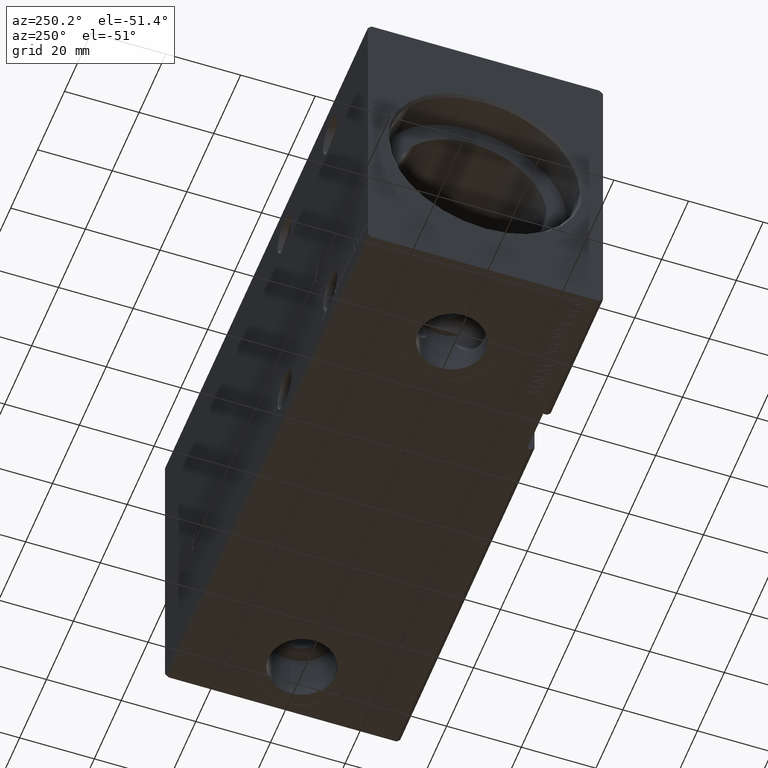
[diagram: clean part render]
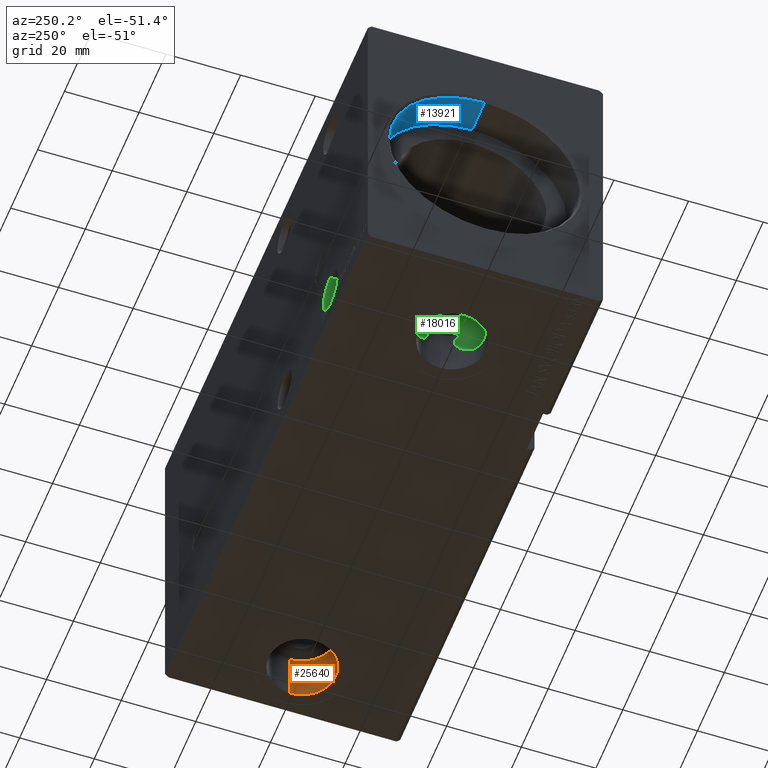
[diagram: same view with three faces highlighted in distinct colors, each labeled with its STEP entity id]
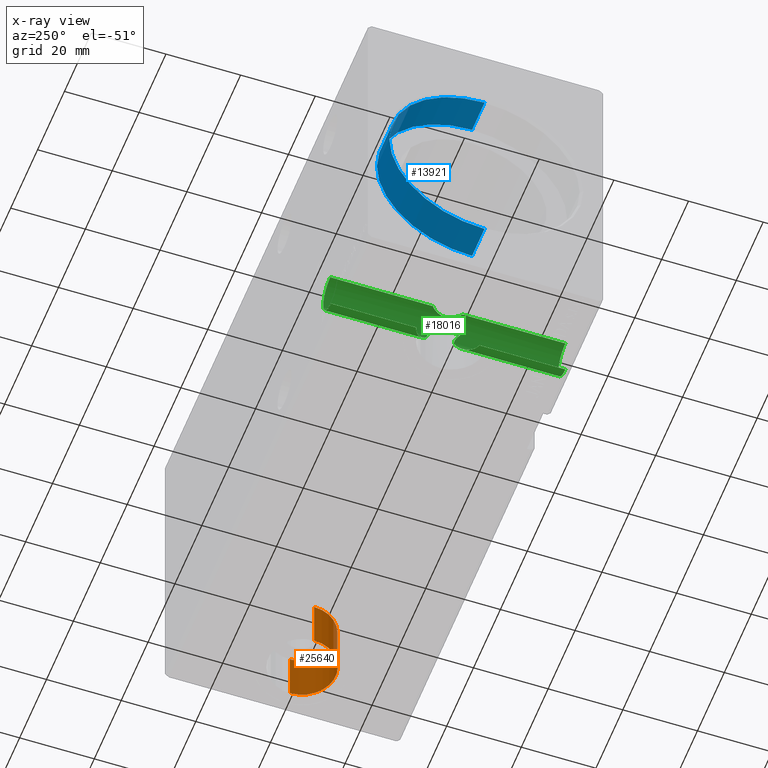
[diagram: x-ray of the same camera — body ghosted, the three highlighted faces saturated]
A machine part, auxiliary view with three faces highlighted in distinct colors.
The next image is the same camera in x-ray (body ghosted, the three faces saturated) — at least one of them is partly hidden behind the body in this view.
Their STEP definitions:

[orange] entity #25640 — the highlighted cylindrical surface (edge-blend (fillet) strip) has radius 9 mm, axis along (-0, -0, -1).
#418 = EDGE_CURVE ( 'NONE', #35977, #12350, #28423, .T. ) ;
#490 = CIRCLE ( 'NONE', #12382, 9.000000000000007105 ) ;
#578 = DIRECTION ( 'NONE',  ( 0.000000000000000000, 0.000000000000000000, -1.000000000000000000 ) ) ;
#773 = AXIS2_PLACEMENT_3D ( 'NONE', #39363, #7695, #26533 ) ;
#989 = DIRECTION ( 'NONE',  ( 0.000000000000000000, 0.000000000000000000, -1.000000000000000000 ) ) ;
#1193 = CARTESIAN_POINT ( 'NONE',  ( 136.4999999999999432, -1.685028184749867373E-14, -42.40000000000000568 ) ) ;
#2338 = VERTEX_POINT ( 'NONE', #5359 ) ;
#5359 = CARTESIAN_POINT ( 'NONE',  ( 145.4999999999999716, -1.574809972826605425E-14, -42.40000000000000568 ) ) ;
#6477 = CARTESIAN_POINT ( 'NONE',  ( 127.4999999999999432, -1.685028184749867373E-14, -28.80000000000000782 ) ) ;
#7695 = DIRECTION ( 'NONE',  ( -0.000000000000000000, -0.000000000000000000, -1.000000000000000000 ) ) ;
#8541 = EDGE_CURVE ( 'NONE', #33361, #2338, #39994, .T. ) ;
#9210 = EDGE_CURVE ( 'NONE', #2338, #12350, #36167, .T. ) ;
#10099 = DIRECTION ( 'NONE',  ( -1.000000000000000000, 0.000000000000000000, 0.000000000000000000 ) ) ;
#11309 = EDGE_CURVE ( 'NONE', #33361, #35977, #490, .T. ) ;
#12350 = VERTEX_POINT ( 'NONE', #16968 ) ;
#12382 = AXIS2_PLACEMENT_3D ( 'NONE', #15893, #578, #10099 ) ;
#13915 = FACE_OUTER_BOUND ( 'NONE', #15657, .T. ) ;
#14540 = DIRECTION ( 'NONE',  ( -0.000000000000000000, -0.000000000000000000, -1.000000000000000000 ) ) ;
#14794 = DIRECTION ( 'NONE',  ( -1.000000000000000000, 0.000000000000000000, 0.000000000000000000 ) ) ;
#14832 = VECTOR ( 'NONE', #16203, 1000.000000000000000 ) ;
#15657 = EDGE_LOOP ( 'NONE', ( #30499, #37000, #28305, #22236 ) ) ;
#15893 = CARTESIAN_POINT ( 'NONE',  ( 136.4999999999999432, -1.685028184749867373E-14, -28.80000000000000782 ) ) ;
#16203 = DIRECTION ( 'NONE',  ( -0.000000000000000000, -0.000000000000000000, -1.000000000000000000 ) ) ;
#16968 = CARTESIAN_POINT ( 'NONE',  ( 127.4999999999999432, -1.685028184749867373E-14, -42.40000000000000568 ) ) ;
#19835 = CARTESIAN_POINT ( 'NONE',  ( 127.4999999999999432, -1.685028184749867373E-14, -28.80000000000000782 ) ) ;
#20330 = CARTESIAN_POINT ( 'NONE',  ( 145.4999999999999716, -1.574809972826605425E-14, -28.80000000000000782 ) ) ;
#22234 = VECTOR ( 'NONE', #14540, 1000.000000000000000 ) ;
#22236 = ORIENTED_EDGE ( 'NONE', *, *, #418, .F. ) ;
#24633 = CARTESIAN_POINT ( 'NONE',  ( 145.4999999999999716, -1.574809972826605425E-14, -28.80000000000000782 ) ) ;
#25640 = ADVANCED_FACE ( 'NONE', ( #13915 ), #29027, .F. ) ;
#26533 = DIRECTION ( 'NONE',  ( -1.000000000000000000, 0.000000000000000000, 0.000000000000000000 ) ) ;
#28305 = ORIENTED_EDGE ( 'NONE', *, *, #9210, .T. ) ;
#28423 = LINE ( 'NONE', #6477, #14832 ) ;
#29027 = CYLINDRICAL_SURFACE ( 'NONE', #773, 9.000000000000007105 ) ;
#30499 = ORIENTED_EDGE ( 'NONE', *, *, #11309, .F. ) ;
#33361 = VERTEX_POINT ( 'NONE', #24633 ) ;
#35977 = VERTEX_POINT ( 'NONE', #19835 ) ;
#36167 = CIRCLE ( 'NONE', #40784, 9.000000000000007105 ) ;
#37000 = ORIENTED_EDGE ( 'NONE', *, *, #8541, .T. ) ;
#39363 = CARTESIAN_POINT ( 'NONE',  ( 136.4999999999999432, -1.685028184749867373E-14, -28.80000000000000782 ) ) ;
#39994 = LINE ( 'NONE', #20330, #22234 ) ;
#40784 = AXIS2_PLACEMENT_3D ( 'NONE', #1193, #989, #14794 ) ;

[blue] entity #13921 — the highlighted cylindrical surface (partial cylindrical patch) has radius 25.5 mm, axis along (-1, -0, -0).
#338 = EDGE_LOOP ( 'NONE', ( #19594, #37217, #11911, #11389 ) ) ;
#1632 = EDGE_CURVE ( 'NONE', #11789, #10135, #36674, .T. ) ;
#3279 = DIRECTION ( 'NONE',  ( -1.000000000000000000, -0.000000000000000000, -0.000000000000000000 ) ) ;
#6040 = DIRECTION ( 'NONE',  ( 0.000000000000000000, 0.000000000000000000, 1.000000000000000000 ) ) ;
#6054 = EDGE_CURVE ( 'NONE', #37896, #11789, #27591, .T. ) ;
#6943 = AXIS2_PLACEMENT_3D ( 'NONE', #21959, #19471, #13062 ) ;
#7833 = EDGE_CURVE ( 'NONE', #40856, #10135, #18991, .T. ) ;
#7940 = DIRECTION ( 'NONE',  ( -1.000000000000000000, -0.000000000000000000, -0.000000000000000000 ) ) ;
#9084 = DIRECTION ( 'NONE',  ( 0.000000000000000000, 0.000000000000000000, 1.000000000000000000 ) ) ;
#9290 = CARTESIAN_POINT ( 'NONE',  ( 10.00000000000000000, 0.000000000000000000, 0.000000000000000000 ) ) ;
#9491 = CYLINDRICAL_SURFACE ( 'NONE', #15083, 25.50000000000000000 ) ;
#10135 = VERTEX_POINT ( 'NONE', #12219 ) ;
#11389 = ORIENTED_EDGE ( 'NONE', *, *, #1632, .T. ) ;
#11789 = VERTEX_POINT ( 'NONE', #27219 ) ;
#11911 = ORIENTED_EDGE ( 'NONE', *, *, #6054, .T. ) ;
#12219 = CARTESIAN_POINT ( 'NONE',  ( 0.7000000000000339284, 3.122849337825750222E-15, -25.50000000000000000 ) ) ;
#13062 = DIRECTION ( 'NONE',  ( 0.000000000000000000, 0.000000000000000000, -1.000000000000000000 ) ) ;
#13650 = VECTOR ( 'NONE', #40941, 1000.000000000000000 ) ;
#13921 = ADVANCED_FACE ( 'NONE', ( #31644 ), #9491, .F. ) ;
#15083 = AXIS2_PLACEMENT_3D ( 'NONE', #9290, #3279, #9084 ) ;
#16090 = EDGE_CURVE ( 'NONE', #37896, #40856, #33659, .T. ) ;
#18991 = LINE ( 'NONE', #38042, #13650 ) ;
#19068 = DIRECTION ( 'NONE',  ( -1.000000000000000000, 0.000000000000000000, 0.000000000000000000 ) ) ;
#19471 = DIRECTION ( 'NONE',  ( -1.000000000000000000, 0.000000000000000000, 0.000000000000000000 ) ) ;
#19594 = ORIENTED_EDGE ( 'NONE', *, *, #7833, .F. ) ;
#21959 = CARTESIAN_POINT ( 'NONE',  ( 0.7000000000000339284, 0.000000000000000000, 0.000000000000000000 ) ) ;
#24534 = CARTESIAN_POINT ( 'NONE',  ( 10.00000000000000000, 3.122849337825750222E-15, -25.50000000000000000 ) ) ;
#25518 = VECTOR ( 'NONE', #7940, 1000.000000000000000 ) ;
#27219 = CARTESIAN_POINT ( 'NONE',  ( 0.7000000000000339284, 0.000000000000000000, 25.50000000000000000 ) ) ;
#27591 = LINE ( 'NONE', #36510, #25518 ) ;
#31644 = FACE_OUTER_BOUND ( 'NONE', #338, .T. ) ;
#31873 = CARTESIAN_POINT ( 'NONE',  ( 10.00000000000000000, 0.000000000000000000, 25.50000000000000000 ) ) ;
#33659 = CIRCLE ( 'NONE', #34295, 25.50000000000000000 ) ;
#34295 = AXIS2_PLACEMENT_3D ( 'NONE', #37911, #19068, #6040 ) ;
#36510 = CARTESIAN_POINT ( 'NONE',  ( 10.00000000000000000, 0.000000000000000000, 25.50000000000000000 ) ) ;
#36674 = CIRCLE ( 'NONE', #6943, 25.50000000000000000 ) ;
#37217 = ORIENTED_EDGE ( 'NONE', *, *, #16090, .F. ) ;
#37896 = VERTEX_POINT ( 'NONE', #31873 ) ;
#37911 = CARTESIAN_POINT ( 'NONE',  ( 10.00000000000000000, 0.000000000000000000, 0.000000000000000000 ) ) ;
#38042 = CARTESIAN_POINT ( 'NONE',  ( 10.00000000000000000, 3.122849337825750222E-15, -25.50000000000000000 ) ) ;
#40856 = VERTEX_POINT ( 'NONE', #24534 ) ;
#40941 = DIRECTION ( 'NONE',  ( -1.000000000000000000, -0.000000000000000000, -0.000000000000000000 ) ) ;

[green] entity #18016 — the highlighted cylindrical surface (edge-blend (fillet) strip) has radius 5.25 mm, axis along (-0, -1, -0).
#76 = VECTOR ( 'NONE', #17742, 1000.000000000000000 ) ;
#173 = VERTEX_POINT ( 'NONE', #29090 ) ;
#278 = VERTEX_POINT ( 'NONE', #17067 ) ;
#376 = CARTESIAN_POINT ( 'NONE',  ( 33.25121982066826121, 3.594075918232833899, -31.25470105989242597 ) ) ;
#585 = CARTESIAN_POINT ( 'NONE',  ( 32.25532018814953972, 5.329639392156568789, -34.58194666906123871 ) ) ;
#652 = ORIENTED_EDGE ( 'NONE', *, *, #35874, .F. ) ;
#697 = EDGE_CURVE ( 'NONE', #13781, #33514, #25394, .T. ) ;
#875 = EDGE_CURVE ( 'NONE', #11342, #39303, #16147, .T. ) ;
#1170 = VECTOR ( 'NONE', #26152, 1000.000000000000000 ) ;
#1174 = EDGE_CURVE ( 'NONE', #6768, #5946, #40948, .T. ) ;
#1271 = CARTESIAN_POINT ( 'NONE',  ( 31.92673162601500891, 31.50000000000002842, -34.98472075455889296 ) ) ;
#1296 = CARTESIAN_POINT ( 'NONE',  ( 29.63514957924284943, -1.884791875338486689, -26.51065206449813161 ) ) ;
#1321 = AXIS2_PLACEMENT_3D ( 'NONE', #34506, #28086, #27481 ) ;
#1493 = CARTESIAN_POINT ( 'NONE',  ( 29.76633653226125276, -1.522855244771721628, -26.55557260921003149 ) ) ;
#1901 = CARTESIAN_POINT ( 'NONE',  ( 29.95564324695108738, -0.7694580020645011009, -26.62690819884094040 ) ) ;
#2163 = CIRCLE ( 'NONE', #10098, 5.249999999999997335 ) ;
#2889 = EDGE_CURVE ( 'NONE', #4783, #16482, #12067, .T. ) ;
#3440 = DIRECTION ( 'NONE',  ( -0.000000000000000000, -1.000000000000000000, -5.507058653894625853E-17 ) ) ;
#3525 = CARTESIAN_POINT ( 'NONE',  ( 29.89057914193943688, -7.559473639547501733, -36.40300476741294489 ) ) ;
#3568 = AXIS2_PLACEMENT_3D ( 'NONE', #37277, #5810, #21538 ) ;
#3693 = CARTESIAN_POINT ( 'NONE',  ( 33.14745762410584717, 3.824639666994759768, -32.56326139473061687 ) ) ;
#3715 = VECTOR ( 'NONE', #23111, 1000.000000000000000 ) ;
#3733 = CARTESIAN_POINT ( 'NONE',  ( 32.61242544197731519, -4.805266457735416274, -28.98331198192884628 ) ) ;
#3804 = AXIS2_PLACEMENT_3D ( 'NONE', #29547, #28939, #19618 ) ;
#3899 = CARTESIAN_POINT ( 'NONE',  ( 32.89003676164426793, 4.333501410248885577, -29.57684835708503002 ) ) ;
#3940 = CARTESIAN_POINT ( 'NONE',  ( 32.26259123308183518, -5.330200586698289555, -34.59367876446104617 ) ) ;
#3962 = DIRECTION ( 'NONE',  ( -0.000000000000000000, -1.000000000000000000, -5.507058653894625853E-17 ) ) ;
#4783 = VERTEX_POINT ( 'NONE', #22740 ) ;
#4808 = CARTESIAN_POINT ( 'NONE',  ( 28.71881732757186612, -3.347770516333654189, -26.29794033079852511 ) ) ;
#4908 = LINE ( 'NONE', #15041, #29008 ) ;
#5148 = B_SPLINE_CURVE_WITH_KNOTS ( 'NONE', 3,
 ( #25841, #13629, #9483, #32059, #34741, #12797, #28742, #9682, #6804, #585, #26250, #19423, #22942, #13223, #7211, #35161, #3693, #15900, #16520, #10107, #19003, #376, #25423, #22738, #25630, #7010, #3899, #6380, #32267, #31635 ),
 .UNSPECIFIED., .F., .F.,
 ( 4, 2, 2, 2, 2, 2, 2, 2, 2, 2, 2, 2, 2, 2, 4 ),
 ( 0.01110394410821251808, 0.01270743503137620155, 0.01431092595453988675, 0.01591441687770357022, 0.01671616233928542583, 0.01751790780086727797, 0.01831965326244913358, 0.01912139872403098573, 0.01992314418561284134, 0.02032401691640375874, 0.02072488964719466920, 0.02152663510877650399, 0.02232838057035833185, 0.02313012603194016317, 0.02393187149352199450 ),
 .UNSPECIFIED. ) ;
#5245 = FACE_OUTER_BOUND ( 'NONE', #40377, .T. ) ;
#5283 = CARTESIAN_POINT ( 'NONE',  ( 29.94316842260553457, 0.7764885955402900386, -26.62278814035358465 ) ) ;
#5732 = AXIS2_PLACEMENT_3D ( 'NONE', #7304, #35453, #13101 ) ;
#5810 = DIRECTION ( 'NONE',  ( -0.000000000000000000, 1.000000000000000000, 5.507058653894625853E-17 ) ) ;
#5932 = ORIENTED_EDGE ( 'NONE', *, *, #1174, .F. ) ;
#5946 = VERTEX_POINT ( 'NONE', #10230 ) ;
#6082 = CARTESIAN_POINT ( 'NONE',  ( 28.00000000000000355, 31.50000000000002842, -26.25000000000000355 ) ) ;
#6380 = CARTESIAN_POINT ( 'NONE',  ( 32.71185286926652225, 4.643192855731156143, -29.17418523732783697 ) ) ;
#6420 = CARTESIAN_POINT ( 'NONE',  ( 32.50249930594109316, -4.971167283883480614, -28.80000000000000782 ) ) ;
#6545 = EDGE_CURVE ( 'NONE', #8606, #33514, #19800, .T. ) ;
#6629 = CARTESIAN_POINT ( 'NONE',  ( 29.22269784940499093, -7.952126355574261396, -36.61103847274182499 ) ) ;
#6734 = ORIENTED_EDGE ( 'NONE', *, *, #23608, .F. ) ;
#6768 = VERTEX_POINT ( 'NONE', #23575 ) ;
#6804 = CARTESIAN_POINT ( 'NONE',  ( 31.99697168527629998, 5.664548906880339629, -34.91033173191557637 ) ) ;
#6843 = CARTESIAN_POINT ( 'NONE',  ( 33.22560366286070632, -3.653595990558375473, -32.06699883898451731 ) ) ;
#7010 = CARTESIAN_POINT ( 'NONE',  ( 32.96926632240329980, 4.184807765991163997, -29.78995615984103296 ) ) ;
#7050 = CARTESIAN_POINT ( 'NONE',  ( 32.96902614846746360, -4.185280637644433810, -29.78916438976628456 ) ) ;
#7211 = CARTESIAN_POINT ( 'NONE',  ( 32.95495435223187997, 4.212036518139114172, -33.25090076812314521 ) ) ;
#7236 = VERTEX_POINT ( 'NONE', #22513 ) ;
#7286 = ORIENTED_EDGE ( 'NONE', *, *, #20304, .T. ) ;
#7304 = CARTESIAN_POINT ( 'NONE',  ( 28.00000000000000355, 31.30000000000001492, -31.50000000000000000 ) ) ;
#7382 = ORIENTED_EDGE ( 'NONE', *, *, #10400, .F. ) ;
#7510 = CARTESIAN_POINT ( 'NONE',  ( 30.00000000000000355, -2.053430469849773110E-15, -26.64587804026310280 ) ) ;
#7703 = EDGE_CURVE ( 'NONE', #30304, #16482, #39436, .T. ) ;
#7709 = CARTESIAN_POINT ( 'NONE',  ( 28.86302342089058826, 31.30000000000001492, -36.67857997669189984 ) ) ;
#7791 = VECTOR ( 'NONE', #31537, 1000.000000000000000 ) ;
#7816 = CARTESIAN_POINT ( 'NONE',  ( 30.28846153846152944, 31.50000000000002842, -36.22498082398037411 ) ) ;
#7862 = DIRECTION ( 'NONE',  ( -0.000000000000000000, 1.000000000000000000, 5.507058653894625853E-17 ) ) ;
#8002 = VECTOR ( 'NONE', #18070, 1000.000000000000000 ) ;
#8293 = CARTESIAN_POINT ( 'NONE',  ( 28.00000000000009592, -8.485281374238560659, -36.75000000000000000 ) ) ;
#8606 = VERTEX_POINT ( 'NONE', #14943 ) ;
#8731 = DIRECTION ( 'NONE',  ( 0.000000000000000000, 0.000000000000000000, 1.000000000000000000 ) ) ;
#8955 = DIRECTION ( 'NONE',  ( 3.370319896183512639E-14, 0.000000000000000000, -1.000000000000000000 ) ) ;
#9483 = CARTESIAN_POINT ( 'NONE',  ( 28.99839540368256863, 8.079827796171874965, -36.67563326641717936 ) ) ;
#9682 = CARTESIAN_POINT ( 'NONE',  ( 31.85706388014904888, 5.833603055918780811, -35.06792960407344140 ) ) ;
#9819 = DIRECTION ( 'NONE',  ( 4.163336342344338920E-14, 0.000000000000000000, -1.000000000000000000 ) ) ;
#9937 = CARTESIAN_POINT ( 'NONE',  ( 28.25226097365503364, -8.396093651688483206, -36.75000000000001421 ) ) ;
#10035 = VECTOR ( 'NONE', #21749, 1000.000000000000000 ) ;
#10098 = AXIS2_PLACEMENT_3D ( 'NONE', #13143, #25343, #9819 ) ;
#10107 = CARTESIAN_POINT ( 'NONE',  ( 33.24327641564041613, 3.612353948695807393, -31.79653127631243947 ) ) ;
#10230 = CARTESIAN_POINT ( 'NONE',  ( 32.20134712561156931, 31.50000000000002842, -34.64820303190811046 ) ) ;
#10350 = CARTESIAN_POINT ( 'NONE',  ( 32.50249930594109316, 4.971167283883475285, -28.80000000000000782 ) ) ;
#10400 = EDGE_CURVE ( 'NONE', #29382, #18860, #31839, .T. ) ;
#10465 = DIRECTION ( 'NONE',  ( -0.000000000000000000, -1.000000000000000000, -5.507058653894625853E-17 ) ) ;
#10530 = EDGE_CURVE ( 'NONE', #278, #18860, #26933, .T. ) ;
#10541 = ORIENTED_EDGE ( 'NONE', *, *, #10530, .T. ) ;
#10606 = CARTESIAN_POINT ( 'NONE',  ( 30.00000000000000000, -0.3871619872007329155, -26.64587804026309215 ) ) ;
#10787 = EDGE_CURVE ( 'NONE', #8606, #16075, #38377, .T. ) ;
#11234 = CYLINDRICAL_SURFACE ( 'NONE', #23773, 5.249999999999997335 ) ;
#11342 = VERTEX_POINT ( 'NONE', #15683 ) ;
#11384 = ORIENTED_EDGE ( 'NONE', *, *, #19852, .T. ) ;
#11439 = CARTESIAN_POINT ( 'NONE',  ( 28.00000000000000355, 31.50000000000002842, -31.50000000000000000 ) ) ;
#11680 = CARTESIAN_POINT ( 'NONE',  ( 30.00000000000001421, 0.1936929401515311844, -26.64587804026310636 ) ) ;
#11888 = CARTESIAN_POINT ( 'NONE',  ( 28.30824521786994552, 3.768816086597537751, -26.25000000000000711 ) ) ;
#11951 = ORIENTED_EDGE ( 'NONE', *, *, #10787, .T. ) ;
#11969 = EDGE_CURVE ( 'NONE', #30393, #7236, #34444, .T. ) ;
#11970 = CARTESIAN_POINT ( 'NONE',  ( 31.92673162601500891, 31.30000000000001492, -34.98472075455890007 ) ) ;
#12067 = LINE ( 'NONE', #38139, #19490 ) ;
#12190 = ORIENTED_EDGE ( 'NONE', *, *, #697, .T. ) ;
#12372 = CARTESIAN_POINT ( 'NONE',  ( 31.92673162601500891, 31.50000000000002842, -34.98472075455890007 ) ) ;
#12420 = CARTESIAN_POINT ( 'NONE',  ( 29.67436925629790423, -7.695307840376844233, -36.48138453588469332 ) ) ;
#12584 = DIRECTION ( 'NONE',  ( 0.000000000000000000, 1.000000000000000000, 5.507058653894625853E-17 ) ) ;
#12653 = ORIENTED_EDGE ( 'NONE', *, *, #7703, .T. ) ;
#12730 = EDGE_CURVE ( 'NONE', #22160, #32522, #17899, .T. ) ;
#12795 = CARTESIAN_POINT ( 'NONE',  ( 28.00000000000000355, 8.485281374238567764, -36.75000000000000000 ) ) ;
#12797 = CARTESIAN_POINT ( 'NONE',  ( 31.07482485393644112, 6.658201535389141945, -35.77778164595130761 ) ) ;
#12837 = CARTESIAN_POINT ( 'NONE',  ( 33.15626062017206976, -3.805746510833896146, -30.47908235364516116 ) ) ;
#12939 = ORIENTED_EDGE ( 'NONE', *, *, #37415, .T. ) ;
#13101 = DIRECTION ( 'NONE',  ( -5.220691603892107715E-14, 0.000000000000000000, -1.000000000000000000 ) ) ;
#13143 = CARTESIAN_POINT ( 'NONE',  ( 28.00000000000000355, 31.30000000000000071, -31.50000000000000000 ) ) ;
#13223 = CARTESIAN_POINT ( 'NONE',  ( 32.87416909036126356, 4.362320355043866726, -33.46292008664418205 ) ) ;
#13263 = CARTESIAN_POINT ( 'NONE',  ( 33.08962436763945902, -3.947224592150487599, -32.80873910227624890 ) ) ;
#13285 = EDGE_CURVE ( 'NONE', #23414, #19898, #5148, .T. ) ;
#13518 = CARTESIAN_POINT ( 'NONE',  ( 28.30551124935887231, -3.756502491067387872, -26.25699461394441769 ) ) ;
#13541 = VERTEX_POINT ( 'NONE', #25792 ) ;
#13629 = CARTESIAN_POINT ( 'NONE',  ( 28.50507965971466362, 8.306708748026755629, -36.75000000000000711 ) ) ;
#13692 = ORIENTED_EDGE ( 'NONE', *, *, #31212, .T. ) ;
#13781 = VERTEX_POINT ( 'NONE', #19892 ) ;
#13852 = CIRCLE ( 'NONE', #16498, 5.249999999999997335 ) ;
#13879 = CARTESIAN_POINT ( 'NONE',  ( 28.00000000000000355, 31.50000000000002842, -31.50000000000000000 ) ) ;
#14447 = CARTESIAN_POINT ( 'NONE',  ( 30.01923076923075584, 31.30000000000001492, -36.34615384615384670 ) ) ;
#14943 = CARTESIAN_POINT ( 'NONE',  ( 28.00000000000000355, -4.000000000000000000, -26.25000000000000711 ) ) ;
#14999 = CARTESIAN_POINT ( 'NONE',  ( 29.29745793697311740, 2.584570385254743474, -26.40967782754010074 ) ) ;
#15041 = CARTESIAN_POINT ( 'NONE',  ( 28.00000000000000355, 31.50000000000002842, -36.75000000000000000 ) ) ;
#15065 = EDGE_CURVE ( 'NONE', #16075, #7236, #27768, .T. ) ;
#15171 = DIRECTION ( 'NONE',  ( -0.000000000000000000, 1.000000000000000000, -0.000000000000000000 ) ) ;
#15683 = CARTESIAN_POINT ( 'NONE',  ( 28.26923076923075939, 31.50000000000002842, -36.74309210227126954 ) ) ;
#15727 = CARTESIAN_POINT ( 'NONE',  ( 32.00127014616709431, -5.672801715841330861, -34.92465175887961948 ) ) ;
#15764 = VERTEX_POINT ( 'NONE', #26004 ) ;
#15900 = CARTESIAN_POINT ( 'NONE',  ( 33.20635492453020277, 3.695669416002513863, -32.18735332703968055 ) ) ;
#15940 = CARTESIAN_POINT ( 'NONE',  ( 32.69212753593811982, -4.675829051438523898, -33.86519840367557777 ) ) ;
#16075 = VERTEX_POINT ( 'NONE', #35013 ) ;
#16147 = CIRCLE ( 'NONE', #21536, 5.249999999999997335 ) ;
#16298 = ORIENTED_EDGE ( 'NONE', *, *, #31533, .T. ) ;
#16377 = CARTESIAN_POINT ( 'NONE',  ( 31.49410893708452264, 31.50000000000002842, -35.41838011629627658 ) ) ;
#16482 = VERTEX_POINT ( 'NONE', #14447 ) ;
#16498 = AXIS2_PLACEMENT_3D ( 'NONE', #16569, #35617, #28999 ) ;
#16520 = CARTESIAN_POINT ( 'NONE',  ( 33.22178636411108954, 3.661002062035550342, -32.05930808703784152 ) ) ;
#16558 = CARTESIAN_POINT ( 'NONE',  ( 31.40682111085803996, -6.336490055253520381, -35.51646266891867754 ) ) ;
#16569 = CARTESIAN_POINT ( 'NONE',  ( 28.00000000000000355, 31.30000000000000071, -31.50000000000000000 ) ) ;
#16780 = ORIENTED_EDGE ( 'NONE', *, *, #18520, .T. ) ;
#16882 = CARTESIAN_POINT ( 'NONE',  ( 28.26923076923075939, 31.50000000000002842, -36.74309210227126954 ) ) ;
#17067 = CARTESIAN_POINT ( 'NONE',  ( 31.99260834176378410, 31.50000000000001421, -34.90904365317874181 ) ) ;
#17426 = CARTESIAN_POINT ( 'NONE',  ( 29.30266322637897858, -2.575687452742012606, -26.41105120986926735 ) ) ;
#17527 = DIRECTION ( 'NONE',  ( -0.000000000000000000, -1.000000000000000000, -5.507058653894625853E-17 ) ) ;
#17536 = LINE ( 'NONE', #7816, #76 ) ;
#17565 = EDGE_CURVE ( 'NONE', #18214, #13781, #33752, .T. ) ;
#17640 = CARTESIAN_POINT ( 'NONE',  ( 31.99260834176378410, 31.50000000000002842, -34.90904365317874181 ) ) ;
#17707 = ORIENTED_EDGE ( 'NONE', *, *, #18136, .F. ) ;
#17742 = DIRECTION ( 'NONE',  ( 0.000000000000000000, 1.000000000000000000, 5.507058653894625853E-17 ) ) ;
#17899 = LINE ( 'NONE', #30533, #7791 ) ;
#17905 = CARTESIAN_POINT ( 'NONE',  ( 29.87570568617721989, 1.156909202716957186, -26.59583968683499222 ) ) ;
#17972 = CARTESIAN_POINT ( 'NONE',  ( 31.49410893708452264, 31.50000000000002842, -35.41838011629628369 ) ) ;
#18016 = ADVANCED_FACE ( 'NONE', ( #5245 ), #11234, .F. ) ;
#18070 = DIRECTION ( 'NONE',  ( 0.000000000000000000, 1.000000000000000000, 5.507058653894625853E-17 ) ) ;
#18136 = EDGE_CURVE ( 'NONE', #33598, #173, #29215, .T. ) ;
#18214 = VERTEX_POINT ( 'NONE', #8293 ) ;
#18520 = EDGE_CURVE ( 'NONE', #33598, #19969, #33717, .T. ) ;
#18842 = CARTESIAN_POINT ( 'NONE',  ( 33.24838697486192984, -3.600573145518977114, -31.80232776514764481 ) ) ;
#18860 = VERTEX_POINT ( 'NONE', #1271 ) ;
#18972 = ORIENTED_EDGE ( 'NONE', *, *, #11969, .F. ) ;
#19003 = CARTESIAN_POINT ( 'NONE',  ( 33.24930188362613137, 3.598474814633961572, -31.65992194442431185 ) ) ;
#19413 = DIRECTION ( 'NONE',  ( 0.000000000000000000, 1.000000000000000000, 5.507058653894625853E-17 ) ) ;
#19423 = CARTESIAN_POINT ( 'NONE',  ( 32.59350529482215819, 4.835035883539086754, -34.05079700972326862 ) ) ;
#19438 = CARTESIAN_POINT ( 'NONE',  ( 28.00000000000000355, -31.50000000000000000, -26.25000000000001066 ) ) ;
#19459 = CARTESIAN_POINT ( 'NONE',  ( 32.95326830917984040, -4.215225687027825963, -33.25562162745016792 ) ) ;
#19484 = ORIENTED_EDGE ( 'NONE', *, *, #40802, .F. ) ;
#19490 = VECTOR ( 'NONE', #24698, 1000.000000000000000 ) ;
#19618 = DIRECTION ( 'NONE',  ( -3.172065784643305754E-14, 0.000000000000000000, -1.000000000000000000 ) ) ;
#19800 = LINE ( 'NONE', #39051, #3715 ) ;
#19852 = EDGE_CURVE ( 'NONE', #13541, #18214, #33412, .T. ) ;
#19892 = CARTESIAN_POINT ( 'NONE',  ( 28.00000000000000355, -31.50000000000000000, -36.75000000000000711 ) ) ;
#19898 = VERTEX_POINT ( 'NONE', #10350 ) ;
#19969 = VERTEX_POINT ( 'NONE', #34331 ) ;
#20304 = EDGE_CURVE ( 'NONE', #39303, #23414, #4908, .T. ) ;
#21001 = CARTESIAN_POINT ( 'NONE',  ( 29.98855780500460355, 0.3900507907648164685, -26.64111773155160634 ) ) ;
#21523 = ORIENTED_EDGE ( 'NONE', *, *, #6545, .F. ) ;
#21536 = AXIS2_PLACEMENT_3D ( 'NONE', #13879, #7862, #36024 ) ;
#21538 = DIRECTION ( 'NONE',  ( 0.000000000000000000, 0.000000000000000000, 1.000000000000000000 ) ) ;
#21609 = ORIENTED_EDGE ( 'NONE', *, *, #2889, .F. ) ;
#21749 = DIRECTION ( 'NONE',  ( -0.000000000000000000, -1.000000000000000000, -5.507058653894625853E-17 ) ) ;
#22160 = VERTEX_POINT ( 'NONE', #7709 ) ;
#22513 = CARTESIAN_POINT ( 'NONE',  ( 28.00000000000000355, 3.999999999999996447, -26.25000000000000711 ) ) ;
#22738 = CARTESIAN_POINT ( 'NONE',  ( 33.15604149390754429, 3.806217606244090668, -30.47803286305385839 ) ) ;
#22740 = CARTESIAN_POINT ( 'NONE',  ( 30.01923076923075584, 31.50000000000002842, -36.34615384615384670 ) ) ;
#22776 = CARTESIAN_POINT ( 'NONE',  ( 28.98517754201990115, -8.074007388929286932, -36.66256190678087279 ) ) ;
#22830 = CARTESIAN_POINT ( 'NONE',  ( 28.00000000000000355, -4.000000000000000000, -26.25000000000000711 ) ) ;
#22942 = CARTESIAN_POINT ( 'NONE',  ( 32.69351342271853156, 4.673567048634319931, -33.86252224089960805 ) ) ;
#23072 = EDGE_CURVE ( 'NONE', #6768, #23657, #13852, .T. ) ;
#23111 = DIRECTION ( 'NONE',  ( -0.000000000000000000, -1.000000000000000000, -5.507058653894625853E-17 ) ) ;
#23414 = VERTEX_POINT ( 'NONE', #12795 ) ;
#23431 = VECTOR ( 'NONE', #12584, 1000.000000000000000 ) ;
#23442 = CARTESIAN_POINT ( 'NONE',  ( 29.82216577618911657, -1.335789515211385226, -26.57613181156802895 ) ) ;
#23575 = CARTESIAN_POINT ( 'NONE',  ( 32.20134712561156931, 31.30000000000000071, -34.64820303190811046 ) ) ;
#23608 = EDGE_CURVE ( 'NONE', #30304, #19969, #17536, .T. ) ;
#23657 = VERTEX_POINT ( 'NONE', #33900 ) ;
#23660 = DIRECTION ( 'NONE',  ( 0.000000000000000000, 0.000000000000000000, -1.000000000000000000 ) ) ;
#23773 = AXIS2_PLACEMENT_3D ( 'NONE', #11439, #26763, #23660 ) ;
#23935 = CARTESIAN_POINT ( 'NONE',  ( 28.00000000000000355, 31.50000000000002842, -26.25000000000000355 ) ) ;
#24083 = DIRECTION ( 'NONE',  ( -0.000000000000000000, 1.000000000000000000, 5.507058653894625853E-17 ) ) ;
#24114 = CARTESIAN_POINT ( 'NONE',  ( 30.00000000000000355, -2.053430469849773110E-15, -26.64587804026310280 ) ) ;
#24316 = CARTESIAN_POINT ( 'NONE',  ( 29.76539165300745537, 1.525916508154180562, -26.55522877943115390 ) ) ;
#24525 = CARTESIAN_POINT ( 'NONE',  ( 28.00000000000000355, 3.999999999999996447, -26.25000000000000711 ) ) ;
#24698 = DIRECTION ( 'NONE',  ( -0.000000000000000000, -1.000000000000000000, -5.507058653894625853E-17 ) ) ;
#24856 = CARTESIAN_POINT ( 'NONE',  ( 28.00000000000000355, 31.50000000000002842, -36.75000000000000000 ) ) ;
#25255 = CARTESIAN_POINT ( 'NONE',  ( 32.88997847107852124, -4.333604162310006558, -29.57671200896456654 ) ) ;
#25343 = DIRECTION ( 'NONE',  ( 0.000000000000000000, 1.000000000000000000, -0.000000000000000000 ) ) ;
#25394 = CIRCLE ( 'NONE', #37321, 5.249999999999997335 ) ;
#25423 = CARTESIAN_POINT ( 'NONE',  ( 33.23144431029089674, 3.640278819404334509, -30.98895093756146224 ) ) ;
#25464 = CARTESIAN_POINT ( 'NONE',  ( 33.23160277185719025, -3.639918902289857705, -30.99046211007217977 ) ) ;
#25630 = CARTESIAN_POINT ( 'NONE',  ( 33.10231161250800369, 3.921016231732447732, -30.24132056221480980 ) ) ;
#25670 = CARTESIAN_POINT ( 'NONE',  ( 32.71187504199514962, -4.643152877768041975, -29.17423996665695185 ) ) ;
#25792 = CARTESIAN_POINT ( 'NONE',  ( 32.50249930594109316, -4.971167283883480614, -28.80000000000000782 ) ) ;
#25841 = CARTESIAN_POINT ( 'NONE',  ( 28.00000000000000355, 8.485281374238567764, -36.75000000000000000 ) ) ;
#25886 = CARTESIAN_POINT ( 'NONE',  ( 33.25144789116190225, -3.593552888541374113, -31.25656014728340182 ) ) ;
#26004 = CARTESIAN_POINT ( 'NONE',  ( 28.26923076923075939, 31.30000000000001492, -36.74309210227126954 ) ) ;
#26062 = CIRCLE ( 'NONE', #3568, 5.249999999999997335 ) ;
#26139 = CARTESIAN_POINT ( 'NONE',  ( 28.58692579569004621, -3.488793333123474838, -26.28100002758705855 ) ) ;
#26152 = DIRECTION ( 'NONE',  ( -0.000000000000000000, -1.000000000000000000, -5.507058653894625853E-17 ) ) ;
#26250 = CARTESIAN_POINT ( 'NONE',  ( 32.37441739424195930, 5.163028447830273038, -34.41055471333661586 ) ) ;
#26319 = ORIENTED_EDGE ( 'NONE', *, *, #23072, .T. ) ;
#26763 = DIRECTION ( 'NONE',  ( -0.000000000000000000, -1.000000000000000000, -5.507058653894625853E-17 ) ) ;
#26933 = CIRCLE ( 'NONE', #3804, 5.249999999999997335 ) ;
#26946 = CARTESIAN_POINT ( 'NONE',  ( 29.08893891966819822, -2.903318359179587471, -26.35809328763805226 ) ) ;
#27418 = CARTESIAN_POINT ( 'NONE',  ( 29.63333331402532522, 1.889338825503146024, -26.51005086222620832 ) ) ;
#27481 = DIRECTION ( 'NONE',  ( 0.000000000000000000, 0.000000000000000000, 1.000000000000000000 ) ) ;
#27625 = CARTESIAN_POINT ( 'NONE',  ( 29.08772545229532014, 2.905423131368644274, -26.35772770332365411 ) ) ;
#27633 = EDGE_CURVE ( 'NONE', #29382, #173, #2163, .T. ) ;
#27768 = B_SPLINE_CURVE_WITH_KNOTS ( 'NONE', 3,
 ( #24114, #11680, #21001, #5283, #17905, #24316, #27418, #40054, #14999, #27625, #34051, #11888, #24525 ),
 .UNSPECIFIED., .F., .F.,
 ( 4, 2, 1, 2, 2, 2, 4 ),
 ( 0.01024982286110600466, 0.01082916566386984102, 0.01140850846663367738, 0.01198785126939751200, 0.01256719407216134836, 0.01372587967768901761, 0.01488456528321668686 ),
 .UNSPECIFIED. ) ;
#27930 = ORIENTED_EDGE ( 'NONE', *, *, #12730, .F. ) ;
#28086 = DIRECTION ( 'NONE',  ( -0.000000000000000000, 1.000000000000000000, 5.507058653894625853E-17 ) ) ;
#28657 = AXIS2_PLACEMENT_3D ( 'NONE', #30911, #15171, #8955 ) ;
#28742 = CARTESIAN_POINT ( 'NONE',  ( 31.40868502255943895, 6.334805045421433078, -35.51517373941182143 ) ) ;
#28939 = DIRECTION ( 'NONE',  ( -0.000000000000000000, 1.000000000000000000, -0.000000000000000000 ) ) ;
#28999 = DIRECTION ( 'NONE',  ( -4.692013973118223317E-14, 0.000000000000000000, -1.000000000000000000 ) ) ;
#29008 = VECTOR ( 'NONE', #17527, 1000.000000000000000 ) ;
#29049 = ORIENTED_EDGE ( 'NONE', *, *, #17565, .T. ) ;
#29090 = CARTESIAN_POINT ( 'NONE',  ( 31.49410893708452264, 31.30000000000000071, -35.41838011629628369 ) ) ;
#29215 = LINE ( 'NONE', #16377, #35690 ) ;
#29382 = VERTEX_POINT ( 'NONE', #11970 ) ;
#29547 = CARTESIAN_POINT ( 'NONE',  ( 28.00000000000000355, 31.50000000000001421, -31.50000000000000000 ) ) ;
#29717 = LINE ( 'NONE', #16882, #31781 ) ;
#29837 = CIRCLE ( 'NONE', #30501, 5.249999999999997335 ) ;
#30304 = VERTEX_POINT ( 'NONE', #33671 ) ;
#30393 = VERTEX_POINT ( 'NONE', #23935 ) ;
#30478 = CARTESIAN_POINT ( 'NONE',  ( 28.00000000000000355, -31.50000000000000000, -31.50000000000000711 ) ) ;
#30494 = CARTESIAN_POINT ( 'NONE',  ( 32.50249930594109316, 31.50000000000002842, -28.80000000000000782 ) ) ;
#30501 = AXIS2_PLACEMENT_3D ( 'NONE', #35484, #24083, #36511 ) ;
#30533 = CARTESIAN_POINT ( 'NONE',  ( 28.86302342089058826, 31.50000000000002842, -36.67857997669189984 ) ) ;
#30911 = CARTESIAN_POINT ( 'NONE',  ( 28.00000000000000355, 31.30000000000001492, -31.50000000000000000 ) ) ;
#31212 = EDGE_CURVE ( 'NONE', #22160, #15764, #36582, .T. ) ;
#31475 = CARTESIAN_POINT ( 'NONE',  ( 32.59211834536794328, -4.837231280210447792, -34.05332277271028119 ) ) ;
#31533 = EDGE_CURVE ( 'NONE', #4783, #32522, #26062, .T. ) ;
#31537 = DIRECTION ( 'NONE',  ( 0.000000000000000000, 1.000000000000000000, 5.507058653894625853E-17 ) ) ;
#31635 = CARTESIAN_POINT ( 'NONE',  ( 32.50249930594109316, 4.971167283883475285, -28.80000000000000782 ) ) ;
#31673 = CARTESIAN_POINT ( 'NONE',  ( 32.87240420797046880, -4.365484547417698202, -33.46720653120355138 ) ) ;
#31781 = VECTOR ( 'NONE', #10465, 1000.000000000000000 ) ;
#31839 = LINE ( 'NONE', #12372, #32883 ) ;
#32059 = CARTESIAN_POINT ( 'NONE',  ( 29.90296816711210681, 7.565162666609802855, -36.41555543611264767 ) ) ;
#32099 = CARTESIAN_POINT ( 'NONE',  ( 30.30560158851340091, -7.274200838205569397, -36.22207015579552802 ) ) ;
#32267 = CARTESIAN_POINT ( 'NONE',  ( 32.61239224535924563, 4.805316558162496143, -28.98325662350298870 ) ) ;
#32306 = CARTESIAN_POINT ( 'NONE',  ( 33.10246986897183774, -3.920705777433834527, -30.24183443631941870 ) ) ;
#32522 = VERTEX_POINT ( 'NONE', #35191 ) ;
#32883 = VECTOR ( 'NONE', #19413, 1000.000000000000000 ) ;
#33049 = ORIENTED_EDGE ( 'NONE', *, *, #15065, .T. ) ;
#33146 = ORIENTED_EDGE ( 'NONE', *, *, #13285, .T. ) ;
#33412 = B_SPLINE_CURVE_WITH_KNOTS ( 'NONE', 3,
 ( #6420, #3733, #25670, #25255, #7050, #32306, #12837, #25464, #25886, #18842, #6843, #38301, #13263, #19459, #31673, #15940, #31475, #3940, #15727, #16558, #34580, #34782, #32099, #3525, #12420, #6629, #22776, #37682, #9937, #38097 ),
 .UNSPECIFIED., .F., .F.,
 ( 4, 2, 2, 2, 2, 2, 2, 2, 2, 2, 2, 2, 2, 2, 4 ),
 ( 0.000000000000000000, 0.0008071024603539738796, 0.001614204920707947759, 0.002421307381061921313, 0.003228409841415895518, 0.004035512301769869289, 0.004842614762123842627, 0.005649717222477816832, 0.006456819682831791037, 0.008071024603539740314, 0.009685229524247690458, 0.01049233198460166119, 0.01129943444495563019, 0.01210653690530960266, 0.01291363936566357340 ),
 .UNSPECIFIED. ) ;
#33462 = ORIENTED_EDGE ( 'NONE', *, *, #27633, .T. ) ;
#33514 = VERTEX_POINT ( 'NONE', #19438 ) ;
#33518 = ORIENTED_EDGE ( 'NONE', *, *, #875, .T. ) ;
#33598 = VERTEX_POINT ( 'NONE', #17972 ) ;
#33671 = CARTESIAN_POINT ( 'NONE',  ( 30.28846153846152944, 31.30000000000001492, -36.22498082398037411 ) ) ;
#33717 = CIRCLE ( 'NONE', #1321, 5.249999999999997335 ) ;
#33752 = LINE ( 'NONE', #40357, #34971 ) ;
#33900 = CARTESIAN_POINT ( 'NONE',  ( 31.99260834176378410, 31.30000000000001492, -34.90904365317874181 ) ) ;
#34051 = CARTESIAN_POINT ( 'NONE',  ( 28.58977998248318997, 3.502065479541749848, -26.27713961463661363 ) ) ;
#34186 = DIRECTION ( 'NONE',  ( 0.000000000000000000, -1.000000000000000000, -0.000000000000000000 ) ) ;
#34331 = CARTESIAN_POINT ( 'NONE',  ( 30.28846153846152944, 31.50000000000002842, -36.22498082398037411 ) ) ;
#34444 = LINE ( 'NONE', #6082, #1170 ) ;
#34506 = CARTESIAN_POINT ( 'NONE',  ( 28.00000000000000355, 31.50000000000002842, -31.50000000000000000 ) ) ;
#34580 = CARTESIAN_POINT ( 'NONE',  ( 31.07321886333549443, -6.659957587000611134, -35.77930101341501512 ) ) ;
#34741 = CARTESIAN_POINT ( 'NONE',  ( 30.32424944703825886, 7.272380113661209400, -36.22777201235059863 ) ) ;
#34782 = CARTESIAN_POINT ( 'NONE',  ( 30.50533783128135568, -7.123974380155897457, -36.11892088993678129 ) ) ;
#34971 = VECTOR ( 'NONE', #3440, 1000.000000000000000 ) ;
#35013 = CARTESIAN_POINT ( 'NONE',  ( 30.00000000000000355, -2.053430469849773110E-15, -26.64587804026310280 ) ) ;
#35161 = CARTESIAN_POINT ( 'NONE',  ( 33.09104545518869145, 3.944303971336530878, -32.80325834189489598 ) ) ;
#35191 = CARTESIAN_POINT ( 'NONE',  ( 28.86302342089058826, 31.50000000000002842, -36.67857997669189984 ) ) ;
#35453 = DIRECTION ( 'NONE',  ( -0.000000000000000000, 1.000000000000000000, -0.000000000000000000 ) ) ;
#35457 = CARTESIAN_POINT ( 'NONE',  ( 28.15535111791911405, -3.883486661560668018, -26.25000000000000711 ) ) ;
#35484 = CARTESIAN_POINT ( 'NONE',  ( 28.00000000000000355, 31.50000000000002842, -31.50000000000000000 ) ) ;
#35617 = DIRECTION ( 'NONE',  ( 0.000000000000000000, 1.000000000000000000, -0.000000000000000000 ) ) ;
#35690 = VECTOR ( 'NONE', #3962, 1000.000000000000000 ) ;
#35874 = EDGE_CURVE ( 'NONE', #13541, #19898, #37310, .T. ) ;
#36024 = DIRECTION ( 'NONE',  ( 0.000000000000000000, 0.000000000000000000, 1.000000000000000000 ) ) ;
#36319 = ORIENTED_EDGE ( 'NONE', *, *, #39224, .F. ) ;
#36511 = DIRECTION ( 'NONE',  ( 0.000000000000000000, 0.000000000000000000, 1.000000000000000000 ) ) ;
#36582 = CIRCLE ( 'NONE', #28657, 5.249999999999997335 ) ;
#36895 = LINE ( 'NONE', #17640, #10035 ) ;
#37277 = CARTESIAN_POINT ( 'NONE',  ( 28.00000000000000355, 31.50000000000002842, -31.50000000000000000 ) ) ;
#37310 = LINE ( 'NONE', #30494, #8002 ) ;
#37321 = AXIS2_PLACEMENT_3D ( 'NONE', #30478, #34186, #8731 ) ;
#37415 = EDGE_CURVE ( 'NONE', #30393, #5946, #29837, .T. ) ;
#37682 = CARTESIAN_POINT ( 'NONE',  ( 28.49971745761768815, -8.295975715655792726, -36.73191195388432106 ) ) ;
#38097 = CARTESIAN_POINT ( 'NONE',  ( 28.00000000000009592, -8.485281374238560659, -36.75000000000000000 ) ) ;
#38139 = CARTESIAN_POINT ( 'NONE',  ( 30.01923076923075584, 31.50000000000002842, -36.34615384615384670 ) ) ;
#38301 = CARTESIAN_POINT ( 'NONE',  ( 33.14534123172962410, -3.829195150338681852, -32.57419036198258055 ) ) ;
#38377 = B_SPLINE_CURVE_WITH_KNOTS ( 'NONE', 3,
 ( #22830, #35457, #13518, #26139, #4808, #26946, #17426, #39579, #1296, #1493, #23442, #1901, #10606, #7510 ),
 .UNSPECIFIED., .F., .F.,
 ( 4, 2, 2, 2, 2, 2, 4 ),
 ( 0.005617759129448863034, 0.006196767095906007689, 0.006775775062363153210, 0.007933790995277438182, 0.008512798961734579367, 0.009091806928191722287, 0.01024982286110600466 ),
 .UNSPECIFIED. ) ;
#39051 = CARTESIAN_POINT ( 'NONE',  ( 28.00000000000000355, 31.50000000000002842, -26.25000000000000355 ) ) ;
#39224 = EDGE_CURVE ( 'NONE', #278, #23657, #36895, .T. ) ;
#39303 = VERTEX_POINT ( 'NONE', #24856 ) ;
#39436 = CIRCLE ( 'NONE', #5732, 5.249999999999997335 ) ;
#39579 = CARTESIAN_POINT ( 'NONE',  ( 29.55952014908692504, -2.060957346364070464, -26.48618361703631408 ) ) ;
#40054 = CARTESIAN_POINT ( 'NONE',  ( 29.55616618555819386, 2.068426186421294055, -26.48513050694855053 ) ) ;
#40357 = CARTESIAN_POINT ( 'NONE',  ( 28.00000000000000355, 31.50000000000002842, -36.75000000000000000 ) ) ;
#40377 = EDGE_LOOP ( 'NONE', ( #18972, #12939, #5932, #26319, #36319, #10541, #7382, #33462, #17707, #16780, #6734, #12653, #21609, #16298, #27930, #13692, #19484, #33518, #7286, #33146, #652, #11384, #29049, #12190, #21523, #11951, #33049 ) ) ;
#40739 = CARTESIAN_POINT ( 'NONE',  ( 32.20134712561156931, 31.50000000000002842, -34.64820303190810336 ) ) ;
#40802 = EDGE_CURVE ( 'NONE', #11342, #15764, #29717, .T. ) ;
#40948 = LINE ( 'NONE', #40739, #23431 ) ;